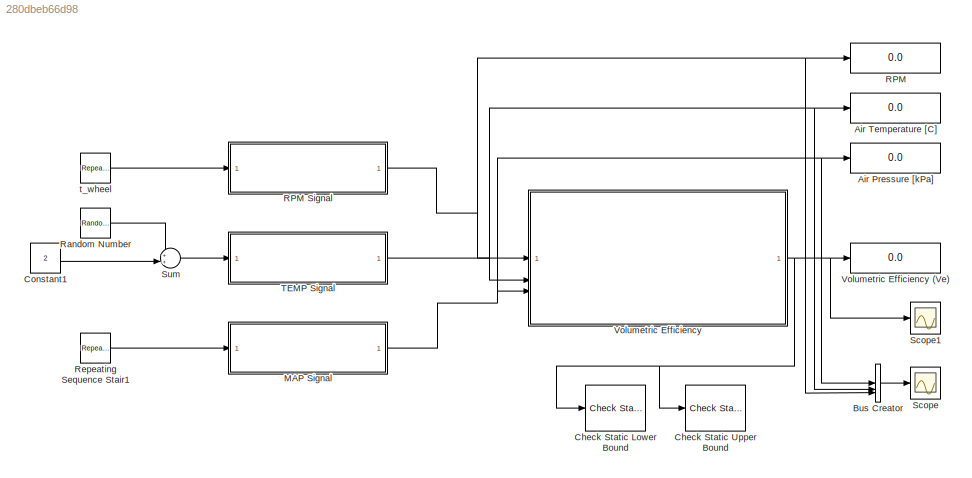
MODEL slx_280dbeb66d98
KIND model
CONFIG AbsTol = auto
CONFIG EnableMultiTasking = off
CONFIG FixedStep = auto
CONFIG MaxStep = auto
CONFIG MinStep = auto
CONFIG RelTol = 1e-3
CONFIG SampleTimeConstraint = Unconstrained
CONFIG SolverName = VariableStepAuto
CONFIG StartTime = 0.0
CONFIG StopTime = 10.0
BLOCK [Display] Air Pressure [kPa]
  Decimation = 1
  Format = decimal (Stored Integer)
BLOCK [Display] Air Temperature [C]
  Decimation = 1
  Format = decimal (Stored Integer)
BLOCK [BusCreator] Bus Creator
  DisplayOption = bar
  InheritFromInputs = on
  Inputs = 3
BLOCK [Reference] Check Static Lower Bound  REF=simulink/Model
Verification/Check Static 
Lower Bound
  Description = 0 < u
  SourceBlock = simulink/Model\nVerification/Check Static \nLower Bound
  SourceType = Checks_SMin
BLOCK [Reference] Check Static Upper Bound  REF=simulink/Model
Verification/Check Static 
Upper Bound
  Description = u <= 1
  SourceBlock = simulink/Model\nVerification/Check Static \nUpper Bound
  SourceType = Checks_SMax
BLOCK [Constant] Constant1
  Value = 2
BLOCK [ModelReference] MAP Signal
  ModelNameDialog = sensorMAP.slx
  ModelReferenceVersion = 1.3
BLOCK [Display] RPM
  Decimation = 1
  Format = decimal (Stored Integer)
BLOCK [ModelReference] RPM Signal
  ModelNameDialog = sensorRPM.slx
  ModelReferenceVersion = 1.1
BLOCK [RandomNumber] Random Number
  Mean = 2
  SampleTime = 1
BLOCK [Reference] Repeating Sequence Stair1  REF=simulink/Sources/Repeating
Sequence
Stair
  SourceBlock = simulink/Sources/Repeating\nSequence\nStair
  SourceType = Repeating Sequence Stair
BLOCK [Scope] Scope
  Floating = off
  NumInputPorts = 1
  ScopeSpecificationString = Simulink.scopes.TimeScopeBlockCfg('CurrentConfiguration', extmgr.ConfigurationSet(extmgr.Configuration('Core','General UI',true),extmgr.Configuration('Core','Source UI',true),extmgr.Configuration('Sources','WiredSimulink',true),extmgr.Configuration('Visuals','Time Domain',true,'SerializedDisplays',{struct('MinYLimReal','-694.64906','MaxYLimReal','6507.22438','YLabelReal','','MinYLimMag',' 0.00000'...<+1404ch>
BLOCK [Scope] Scope1
  Floating = off
  NumInputPorts = 1
  ScopeSpecificationString = Simulink.scopes.TimeScopeBlockCfg('CurrentConfiguration', extmgr.ConfigurationSet(extmgr.Configuration('Core','General UI',true),extmgr.Configuration('Core','Source UI',true),extmgr.Configuration('Sources','WiredSimulink',true,'DataLoggingVariableName','ScopeData1'),extmgr.Configuration('Visuals','Time Domain',true,'SerializedDisplays',{struct('MinYLimReal','-0.00064','MaxYLimReal','0.30227','YLab...<+1409ch>
BLOCK [Sum] Sum
  Inputs = ++|
BLOCK [ModelReference] TEMP Signal
  ModelNameDialog = sensorTemperature.slx
  ModelReferenceVersion = 1.4
BLOCK [ModelReference] Volumetric Efficiency
  ModelNameDialog = volumetricEfficiency.slx
  ModelReferenceVersion = 1.16
BLOCK [Display] Volumetric Efficiency (Ve)
  Decimation = 1
BLOCK [Reference] t_wheel  REF=simulink/Sources/Repeating
Sequence
Stair
  SourceBlock = simulink/Sources/Repeating\nSequence\nStair
  SourceType = Repeating Sequence Stair
LINE Bus Creator:1 -> Scope:1
LINE Constant1:1 -> Sum:2
NET MAP Signal:1 -> Air Pressure [kPa]:1, Bus Creator:1, Volumetric Efficiency:3
NET RPM Signal:1 -> Bus Creator:3, RPM:1, Volumetric Efficiency:1
LINE Random Number:1 -> Sum:1
LINE Repeating Sequence Stair1:1 -> MAP Signal:1
LINE Sum:1 -> TEMP Signal:1
NET TEMP Signal:1 -> Air Temperature [C]:1, Bus Creator:2, Volumetric Efficiency:2
NET Volumetric Efficiency:1 -> Check Static Lower Bound:1, Check Static Upper Bound:1, Scope1:1, Volumetric Efficiency (Ve):1
LINE t_wheel:1 -> RPM Signal:1
note: NET lines group one-source signal fan-out (src -> all destinations, sorted); 1:1 wires keep LINE
